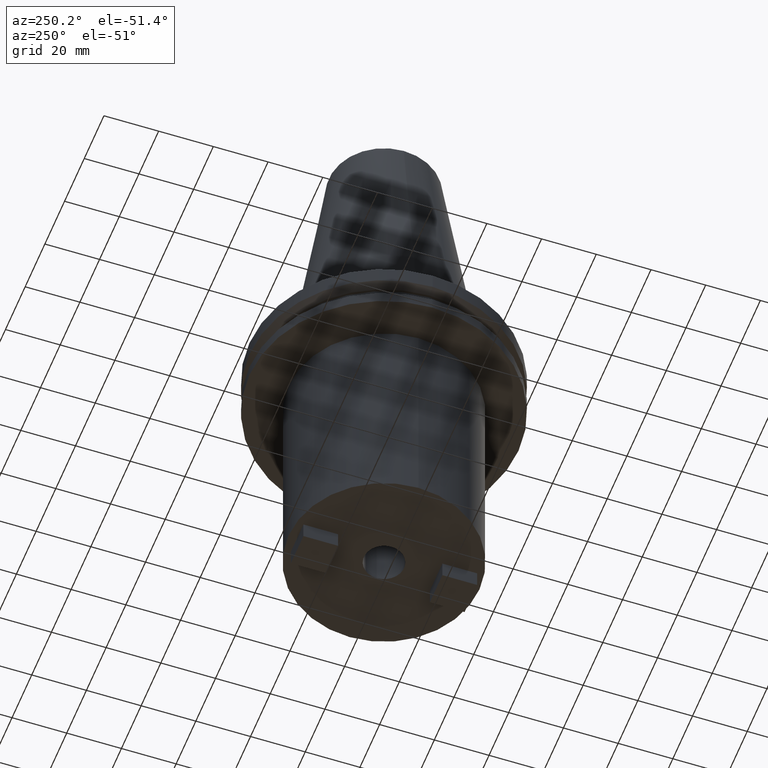
[diagram: clean part render]
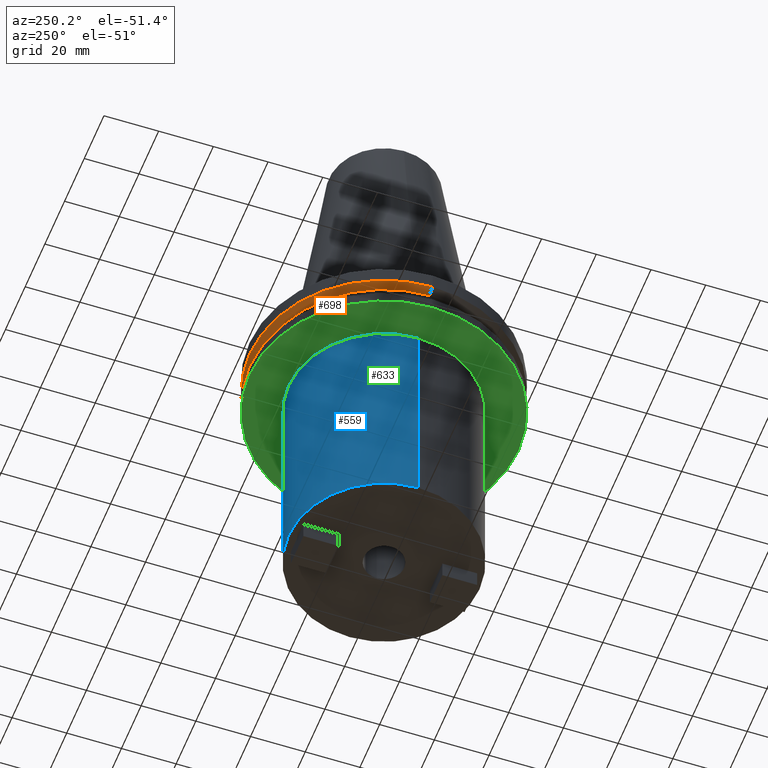
[diagram: same view with three faces highlighted in distinct colors, each labeled with its STEP entity id]
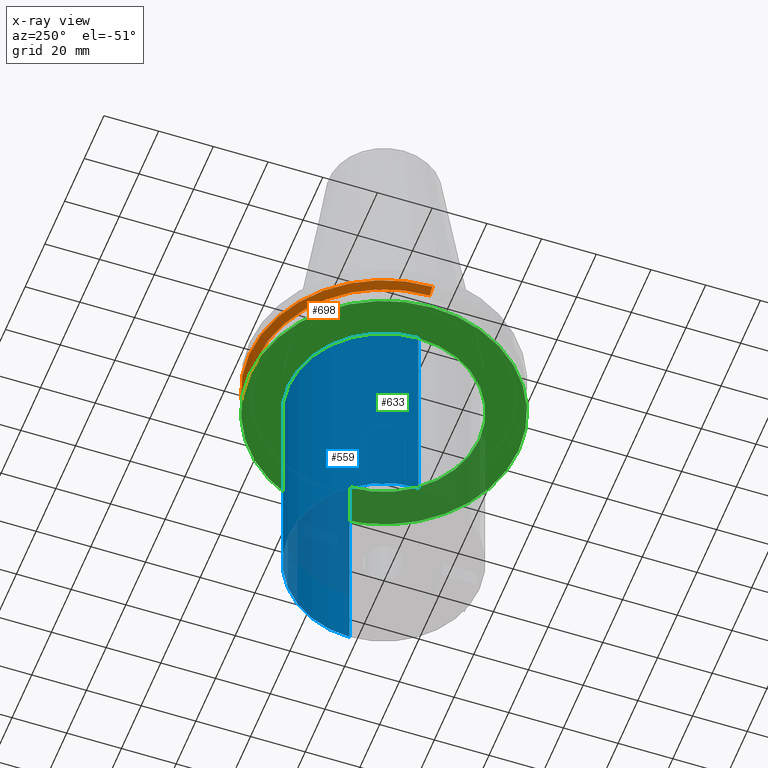
[diagram: x-ray of the same camera — body ghosted, the three highlighted faces saturated]
A machine part, auxiliary view with three faces highlighted in distinct colors.
The next image is the same camera in x-ray (body ghosted, the three faces saturated) — at least one of them is partly hidden behind the body in this view.
Their STEP definitions:

[orange] entity #698 — the highlighted conical surface has half-angle 60 deg.
#73 = CARTESIAN_POINT ( 'NONE',  ( -46.43919780457007818, 5.687161494633754392E-15, -9.204999999999991189 ) ) ;
#86 = ORIENTED_EDGE ( 'NONE', *, *, #454, .F. ) ;
#101 = ORIENTED_EDGE ( 'NONE', *, *, #777, .T. ) ;
#159 = DIRECTION ( 'NONE',  ( -0.000000000000000000, -0.000000000000000000, 1.000000000000000000 ) ) ;
#184 = AXIS2_PLACEMENT_3D ( 'NONE', #489, #649, #244 ) ;
#229 = DIRECTION ( 'NONE',  ( -0.000000000000000000, -0.000000000000000000, 1.000000000000000000 ) ) ;
#244 = DIRECTION ( 'NONE',  ( 1.000000000000000000, 0.000000000000000000, 0.000000000000000000 ) ) ;
#279 = CIRCLE ( 'NONE', #184, 46.43919780457007818 ) ;
#295 = VECTOR ( 'NONE', #749, 1000.000000000000000 ) ;
#315 = CIRCLE ( 'NONE', #693, 49.21500000000000341 ) ;
#348 = CARTESIAN_POINT ( 'NONE',  ( -46.43919780457007818, 5.857130358318727293E-15, -9.204999999999991189 ) ) ;
#350 = CARTESIAN_POINT ( 'NONE',  ( 46.43919780457007818, 0.000000000000000000, -9.204999999999991189 ) ) ;
#393 = DIRECTION ( 'NONE',  ( -0.8660254037844273833, 1.060575238724893110E-16, 0.5000000000000195399 ) ) ;
#416 = CONICAL_SURFACE ( 'NONE', #870, 46.43919780457007818, 1.047197551196575205 ) ;
#423 = CARTESIAN_POINT ( 'NONE',  ( -49.21500000000000341, 6.027099222003699404E-15, -7.602389855251287187 ) ) ;
#454 = EDGE_CURVE ( 'NONE', #831, #519, #588, .T. ) ;
#460 = CARTESIAN_POINT ( 'NONE',  ( 0.000000000000000000, 0.000000000000000000, -9.204999999999991189 ) ) ;
#489 = CARTESIAN_POINT ( 'NONE',  ( 0.000000000000000000, 0.000000000000000000, -9.204999999999991189 ) ) ;
#494 = CARTESIAN_POINT ( 'NONE',  ( 46.43919780457007818, 0.000000000000000000, -9.204999999999991189 ) ) ;
#519 = VERTEX_POINT ( 'NONE', #668 ) ;
#588 = LINE ( 'NONE', #350, #295 ) ;
#591 = EDGE_CURVE ( 'NONE', #519, #928, #315, .T. ) ;
#638 = EDGE_CURVE ( 'NONE', #971, #928, #1008, .T. ) ;
#649 = DIRECTION ( 'NONE',  ( -0.000000000000000000, -0.000000000000000000, 1.000000000000000000 ) ) ;
#668 = CARTESIAN_POINT ( 'NONE',  ( 49.21500000000000341, 0.000000000000000000, -7.602389855251287187 ) ) ;
#693 = AXIS2_PLACEMENT_3D ( 'NONE', #936, #229, #706 ) ;
#698 = ADVANCED_FACE ( 'NONE', ( #860 ), #416, .T. ) ;
#703 = ORIENTED_EDGE ( 'NONE', *, *, #591, .F. ) ;
#706 = DIRECTION ( 'NONE',  ( 1.000000000000000000, 0.000000000000000000, 0.000000000000000000 ) ) ;
#749 = DIRECTION ( 'NONE',  ( 0.8660254037844273833, 0.000000000000000000, 0.5000000000000195399 ) ) ;
#777 = EDGE_CURVE ( 'NONE', #831, #971, #279, .T. ) ;
#831 = VERTEX_POINT ( 'NONE', #494 ) ;
#860 = FACE_OUTER_BOUND ( 'NONE', #943, .T. ) ;
#870 = AXIS2_PLACEMENT_3D ( 'NONE', #460, #159, #921 ) ;
#895 = ORIENTED_EDGE ( 'NONE', *, *, #638, .T. ) ;
#921 = DIRECTION ( 'NONE',  ( 1.000000000000000000, 0.000000000000000000, 0.000000000000000000 ) ) ;
#928 = VERTEX_POINT ( 'NONE', #423 ) ;
#936 = CARTESIAN_POINT ( 'NONE',  ( 0.000000000000000000, 0.000000000000000000, -7.602389855251287187 ) ) ;
#943 = EDGE_LOOP ( 'NONE', ( #101, #895, #703, #86 ) ) ;
#971 = VERTEX_POINT ( 'NONE', #348 ) ;
#997 = VECTOR ( 'NONE', #393, 1000.000000000000000 ) ;
#1008 = LINE ( 'NONE', #73, #997 ) ;

[blue] entity #559 — the highlighted cylindrical surface (partial cylindrical patch) has radius 34.925 mm, axis along (-0, -0, 1).
#28 = AXIS2_PLACEMENT_3D ( 'NONE', #383, #713, #764 ) ;
#71 = ORIENTED_EDGE ( 'NONE', *, *, #238, .T. ) ;
#99 = CARTESIAN_POINT ( 'NONE',  ( 34.92499999999999716, 0.000000000000000000, -101.5999999999999943 ) ) ;
#102 = LINE ( 'NONE', #283, #133 ) ;
#113 = EDGE_CURVE ( 'NONE', #862, #359, #601, .T. ) ;
#133 = VECTOR ( 'NONE', #206, 1000.000000000000000 ) ;
#206 = DIRECTION ( 'NONE',  ( -0.000000000000000000, -0.000000000000000000, 1.000000000000000000 ) ) ;
#215 = CIRCLE ( 'NONE', #28, 34.92499999999999716 ) ;
#222 = CARTESIAN_POINT ( 'NONE',  ( 34.92499999999999716, 0.000000000000000000, 101.5999999999999943 ) ) ;
#238 = EDGE_CURVE ( 'NONE', #862, #669, #215, .T. ) ;
#241 = CARTESIAN_POINT ( 'NONE',  ( -34.92499999999999716, 4.277078946022130887E-15, -19.04999999999999716 ) ) ;
#242 = ORIENTED_EDGE ( 'NONE', *, *, #925, .T. ) ;
#249 = AXIS2_PLACEMENT_3D ( 'NONE', #973, #900, #673 ) ;
#266 = CARTESIAN_POINT ( 'NONE',  ( 0.000000000000000000, 0.000000000000000000, -19.04999999999999716 ) ) ;
#283 = CARTESIAN_POINT ( 'NONE',  ( -34.92499999999999716, 4.277078946022130887E-15, 101.5999999999999943 ) ) ;
#335 = CARTESIAN_POINT ( 'NONE',  ( 34.92499999999999716, 0.000000000000000000, -19.04999999999999716 ) ) ;
#359 = VERTEX_POINT ( 'NONE', #335 ) ;
#365 = AXIS2_PLACEMENT_3D ( 'NONE', #266, #680, #367 ) ;
#367 = DIRECTION ( 'NONE',  ( 1.000000000000000000, 0.000000000000000000, 0.000000000000000000 ) ) ;
#383 = CARTESIAN_POINT ( 'NONE',  ( 0.000000000000000000, 0.000000000000000000, -101.5999999999999943 ) ) ;
#390 = VERTEX_POINT ( 'NONE', #241 ) ;
#394 = DIRECTION ( 'NONE',  ( -0.000000000000000000, -0.000000000000000000, 1.000000000000000000 ) ) ;
#446 = EDGE_CURVE ( 'NONE', #359, #390, #691, .T. ) ;
#509 = CYLINDRICAL_SURFACE ( 'NONE', #249, 34.92499999999999716 ) ;
#559 = ADVANCED_FACE ( 'NONE', ( #754 ), #509, .T. ) ;
#579 = VECTOR ( 'NONE', #394, 1000.000000000000000 ) ;
#601 = LINE ( 'NONE', #222, #579 ) ;
#643 = ORIENTED_EDGE ( 'NONE', *, *, #113, .F. ) ;
#644 = EDGE_LOOP ( 'NONE', ( #71, #242, #933, #643 ) ) ;
#669 = VERTEX_POINT ( 'NONE', #992 ) ;
#673 = DIRECTION ( 'NONE',  ( 1.000000000000000000, 0.000000000000000000, 0.000000000000000000 ) ) ;
#680 = DIRECTION ( 'NONE',  ( -0.000000000000000000, -0.000000000000000000, 1.000000000000000000 ) ) ;
#691 = CIRCLE ( 'NONE', #365, 34.92499999999999716 ) ;
#713 = DIRECTION ( 'NONE',  ( -0.000000000000000000, -0.000000000000000000, 1.000000000000000000 ) ) ;
#754 = FACE_OUTER_BOUND ( 'NONE', #644, .T. ) ;
#764 = DIRECTION ( 'NONE',  ( 1.000000000000000000, 0.000000000000000000, 0.000000000000000000 ) ) ;
#862 = VERTEX_POINT ( 'NONE', #99 ) ;
#900 = DIRECTION ( 'NONE',  ( -0.000000000000000000, -0.000000000000000000, 1.000000000000000000 ) ) ;
#925 = EDGE_CURVE ( 'NONE', #669, #390, #102, .T. ) ;
#933 = ORIENTED_EDGE ( 'NONE', *, *, #446, .F. ) ;
#973 = CARTESIAN_POINT ( 'NONE',  ( 0.000000000000000000, 0.000000000000000000, 101.5999999999999943 ) ) ;
#992 = CARTESIAN_POINT ( 'NONE',  ( -34.92499999999999716, 4.277078946022130887E-15, -101.5999999999999943 ) ) ;

[green] entity #633 — the highlighted planar face has unit normal (0, -0, 1).
#49 = AXIS2_PLACEMENT_3D ( 'NONE', #179, #327, #883 ) ;
#54 = PLANE ( 'NONE',  #316 ) ;
#80 = ORIENTED_EDGE ( 'NONE', *, *, #768, .F. ) ;
#109 = EDGE_LOOP ( 'NONE', ( #708, #311 ) ) ;
#128 = EDGE_LOOP ( 'NONE', ( #950, #80 ) ) ;
#179 = CARTESIAN_POINT ( 'NONE',  ( 0.000000000000000000, 0.000000000000000000, -19.04999999999999716 ) ) ;
#200 = CIRCLE ( 'NONE', #49, 49.21499999999998920 ) ;
#241 = CARTESIAN_POINT ( 'NONE',  ( -34.92499999999999716, 4.277078946022130887E-15, -19.04999999999999716 ) ) ;
#266 = CARTESIAN_POINT ( 'NONE',  ( 0.000000000000000000, 0.000000000000000000, -19.04999999999999716 ) ) ;
#302 = FACE_BOUND ( 'NONE', #109, .T. ) ;
#311 = ORIENTED_EDGE ( 'NONE', *, *, #918, .T. ) ;
#316 = AXIS2_PLACEMENT_3D ( 'NONE', #375, #371, #686 ) ;
#327 = DIRECTION ( 'NONE',  ( -0.000000000000000000, -0.000000000000000000, 1.000000000000000000 ) ) ;
#335 = CARTESIAN_POINT ( 'NONE',  ( 34.92499999999999716, 0.000000000000000000, -19.04999999999999716 ) ) ;
#359 = VERTEX_POINT ( 'NONE', #335 ) ;
#365 = AXIS2_PLACEMENT_3D ( 'NONE', #266, #680, #367 ) ;
#367 = DIRECTION ( 'NONE',  ( 1.000000000000000000, 0.000000000000000000, 0.000000000000000000 ) ) ;
#371 = DIRECTION ( 'NONE',  ( 0.000000000000000000, -0.000000000000000000, 1.000000000000000000 ) ) ;
#375 = CARTESIAN_POINT ( 'NONE',  ( 0.000000000000000000, 49.21499999999998920, -19.04999999999999716 ) ) ;
#390 = VERTEX_POINT ( 'NONE', #241 ) ;
#446 = EDGE_CURVE ( 'NONE', #359, #390, #691, .T. ) ;
#449 = CIRCLE ( 'NONE', #728, 34.92499999999999716 ) ;
#472 = VERTEX_POINT ( 'NONE', #907 ) ;
#479 = DIRECTION ( 'NONE',  ( -0.000000000000000000, -0.000000000000000000, 1.000000000000000000 ) ) ;
#525 = VERTEX_POINT ( 'NONE', #824 ) ;
#556 = DIRECTION ( 'NONE',  ( 1.000000000000000000, 0.000000000000000000, 0.000000000000000000 ) ) ;
#587 = DIRECTION ( 'NONE',  ( 1.000000000000000000, 0.000000000000000000, 0.000000000000000000 ) ) ;
#633 = ADVANCED_FACE ( 'NONE', ( #780, #302 ), #54, .F. ) ;
#680 = DIRECTION ( 'NONE',  ( -0.000000000000000000, -0.000000000000000000, 1.000000000000000000 ) ) ;
#686 = DIRECTION ( 'NONE',  ( 1.000000000000000000, 0.000000000000000000, 0.000000000000000000 ) ) ;
#691 = CIRCLE ( 'NONE', #365, 34.92499999999999716 ) ;
#708 = ORIENTED_EDGE ( 'NONE', *, *, #446, .T. ) ;
#728 = AXIS2_PLACEMENT_3D ( 'NONE', #966, #808, #587 ) ;
#751 = EDGE_CURVE ( 'NONE', #472, #525, #837, .T. ) ;
#768 = EDGE_CURVE ( 'NONE', #525, #472, #200, .T. ) ;
#780 = FACE_OUTER_BOUND ( 'NONE', #128, .T. ) ;
#808 = DIRECTION ( 'NONE',  ( -0.000000000000000000, -0.000000000000000000, 1.000000000000000000 ) ) ;
#824 = CARTESIAN_POINT ( 'NONE',  ( -49.21499999999998920, 6.027099222003697037E-15, -19.04999999999999716 ) ) ;
#837 = CIRCLE ( 'NONE', #902, 49.21499999999998920 ) ;
#876 = CARTESIAN_POINT ( 'NONE',  ( 0.000000000000000000, 0.000000000000000000, -19.04999999999999716 ) ) ;
#883 = DIRECTION ( 'NONE',  ( 1.000000000000000000, 0.000000000000000000, 0.000000000000000000 ) ) ;
#902 = AXIS2_PLACEMENT_3D ( 'NONE', #876, #479, #556 ) ;
#907 = CARTESIAN_POINT ( 'NONE',  ( 49.21499999999998920, 0.000000000000000000, -19.04999999999999716 ) ) ;
#918 = EDGE_CURVE ( 'NONE', #390, #359, #449, .T. ) ;
#950 = ORIENTED_EDGE ( 'NONE', *, *, #751, .F. ) ;
#966 = CARTESIAN_POINT ( 'NONE',  ( 0.000000000000000000, 0.000000000000000000, -19.04999999999999716 ) ) ;